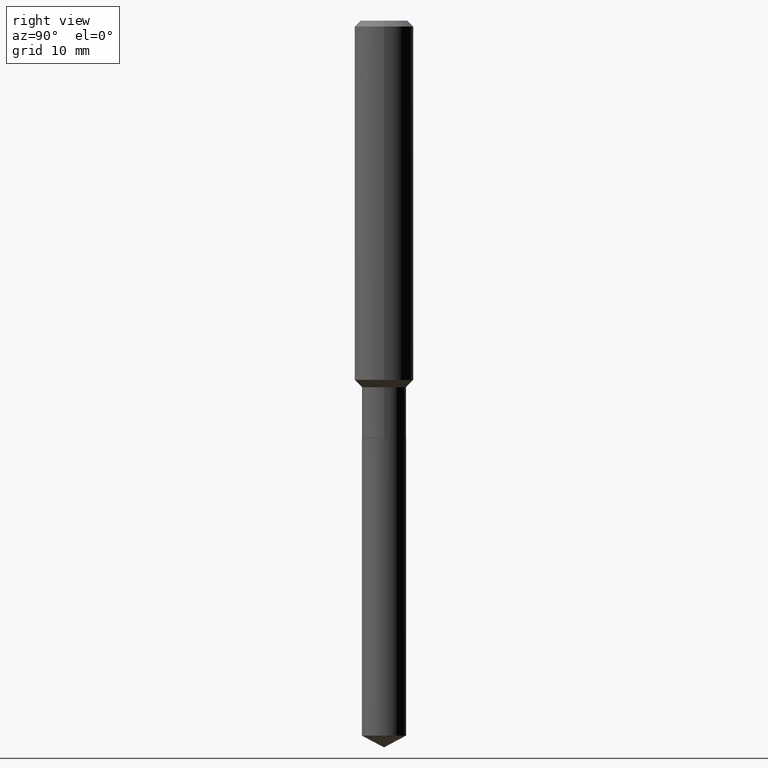
[diagram: clean part render]
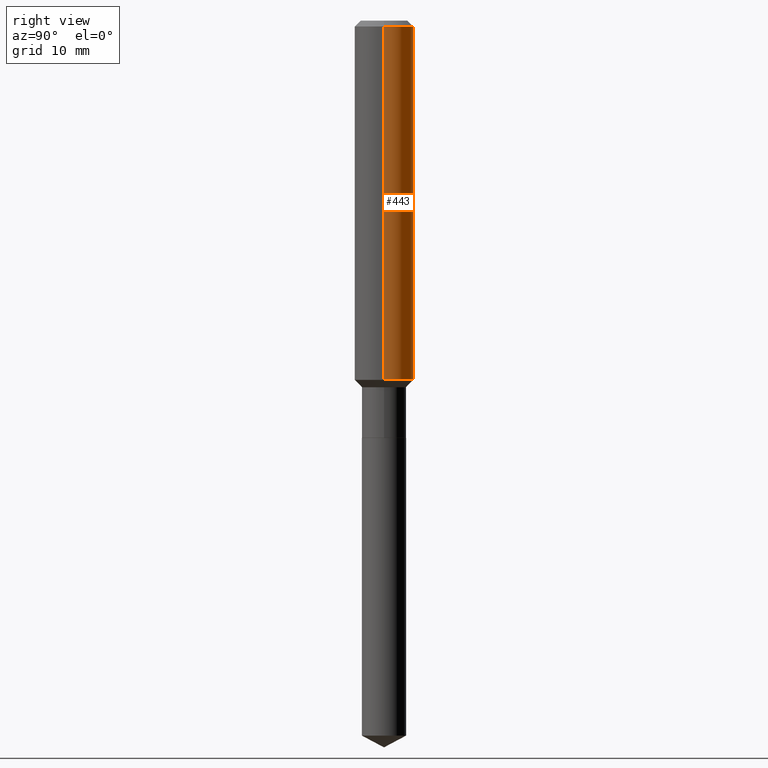
[diagram: same view with one face highlighted and labeled with its STEP entity id]
A machine part, right view. The second image highlights one B-rep face of the part: STEP entity #443.
In plain terms, the highlighted cylindrical surface (edge-blend (fillet) strip) has radius 2.9997 mm, axis along (-0, 0, 1).
Its self-contained STEP definition (entity closure, byte-faithful):
#5 = CIRCLE ( 'NONE', #82, 0.1180999999999999966 ) ;
#7 = LINE ( 'NONE', #49, #311 ) ;
#21 = VECTOR ( 'NONE', #34, 39.37007874015748143 ) ;
#26 = CARTESIAN_POINT ( 'NONE',  ( 0.1180999999999999966, -9.071566814582237199E-16, -0.02362000000000014088 ) ) ;
#34 = DIRECTION ( 'NONE',  ( -2.445468806185136877E-29, 3.491481338843145188E-15, 1.000000000000000000 ) ) ;
#49 = CARTESIAN_POINT ( 'NONE',  ( -0.1181000000000000799, 8.391509709326788873E-16, -5.809262341591047988E-30 ) ) ;
#60 = LINE ( 'NONE', #218, #21 ) ;
#66 = CARTESIAN_POINT ( 'NONE',  ( 5.776197320209327532E-31, -8.246878922347559293E-17, -0.02362000000000014088 ) ) ;
#67 = ORIENTED_EDGE ( 'NONE', *, *, #125, .F. ) ;
#82 = AXIS2_PLACEMENT_3D ( 'NONE', #66, #446, #168 ) ;
#101 = CIRCLE ( 'NONE', #117, 0.1181000000000001632 ) ;
#117 = AXIS2_PLACEMENT_3D ( 'NONE', #484, #399, #437 ) ;
#123 = CYLINDRICAL_SURFACE ( 'NONE', #284, 0.1181000000000000799 ) ;
#125 = EDGE_CURVE ( 'NONE', #478, #401, #5, .T. ) ;
#133 = FACE_OUTER_BOUND ( 'NONE', #317, .T. ) ;
#168 = DIRECTION ( 'NONE',  ( 1.000000000000000000, -6.982962677686266711E-15, 0.000000000000000000 ) ) ;
#171 = CARTESIAN_POINT ( 'NONE',  ( -0.1181000000000001632, -4.188582157001450874E-15, -1.440000000000000169 ) ) ;
#218 = CARTESIAN_POINT ( 'NONE',  ( 0.1181000000000000799, -8.246878922347486570E-16, 5.758764772215004644E-30 ) ) ;
#221 = EDGE_CURVE ( 'NONE', #466, #480, #101, .T. ) ;
#257 = ORIENTED_EDGE ( 'NONE', *, *, #221, .T. ) ;
#271 = EDGE_CURVE ( 'NONE', #466, #478, #60, .T. ) ;
#282 = DIRECTION ( 'NONE',  ( 1.000000000000000000, -6.982962677686266711E-15, 4.876176775795936353E-29 ) ) ;
#284 = AXIS2_PLACEMENT_3D ( 'NONE', #318, #473, #282 ) ;
#311 = VECTOR ( 'NONE', #469, 39.37007874015748143 ) ;
#317 = EDGE_LOOP ( 'NONE', ( #257, #345, #67, #447 ) ) ;
#318 = CARTESIAN_POINT ( 'NONE',  ( 0.000000000000000000, 0.000000000000000000, 0.000000000000000000 ) ) ;
#320 = CARTESIAN_POINT ( 'NONE',  ( 0.1181000000000001632, -5.852421020168879700E-15, -1.440000000000000169 ) ) ;
#325 = CARTESIAN_POINT ( 'NONE',  ( -0.1180999999999999966, -1.715949987646123475E-15, -0.02362000000000014088 ) ) ;
#345 = ORIENTED_EDGE ( 'NONE', *, *, #363, .T. ) ;
#363 = EDGE_CURVE ( 'NONE', #480, #401, #7, .T. ) ;
#399 = DIRECTION ( 'NONE',  ( -2.445468806185136597E-29, 3.491481338843145583E-15, 1.000000000000000000 ) ) ;
#401 = VERTEX_POINT ( 'NONE', #325 ) ;
#437 = DIRECTION ( 'NONE',  ( 1.000000000000000000, -6.982962677686263555E-15, 0.000000000000000000 ) ) ;
#443 = ADVANCED_FACE ( 'NONE', ( #133 ), #123, .T. ) ;
#446 = DIRECTION ( 'NONE',  ( -2.445468806185136597E-29, 3.491481338843145583E-15, 1.000000000000000000 ) ) ;
#447 = ORIENTED_EDGE ( 'NONE', *, *, #271, .F. ) ;
#466 = VERTEX_POINT ( 'NONE', #320 ) ;
#469 = DIRECTION ( 'NONE',  ( -2.445468806185136877E-29, 3.491481338843145188E-15, 1.000000000000000000 ) ) ;
#473 = DIRECTION ( 'NONE',  ( -2.445468806185136597E-29, 3.491481338843145583E-15, 1.000000000000000000 ) ) ;
#478 = VERTEX_POINT ( 'NONE', #26 ) ;
#480 = VERTEX_POINT ( 'NONE', #171 ) ;
#484 = CARTESIAN_POINT ( 'NONE',  ( 3.521475080906597305E-29, -5.027733127934130649E-15, -1.440000000000000169 ) ) ;